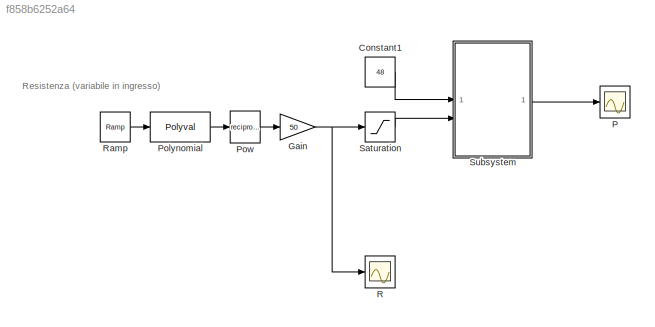
MODEL slx_f858b6252a64
KIND model
CONFIG AbsTol = auto
CONFIG EnableMultiTasking = off
CONFIG FixedStep = auto
CONFIG MaxStep = auto
CONFIG MinStep = auto
CONFIG RelTol = 1e-3
CONFIG SampleTimeConstraint = Unconstrained
CONFIG SolverName = VariableStepAuto
CONFIG StartTime = 0.0
CONFIG StopTime = 1800
BLOCK [Constant] Constant1
  Value = 48
BLOCK [Gain] Gain
  Gain = 50
BLOCK [Scope] P
  Floating = off
  NumInputPorts = 1
  ScopeSpecificationString = Simulink.scopes.TimeScopeBlockCfg('CurrentConfiguration', extmgr.ConfigurationSet(extmgr.Configuration('Core','General UI',true),extmgr.Configuration('Core','Source UI',true),extmgr.Configuration('Sources','WiredSimulink',true),extmgr.Configuration('Visuals','Time Domain',true,'SerializedDisplays',{struct('MinYLimReal','-180.73043','MaxYLimReal','1726.74783','YLabelReal','','MinYLimMag',' 0.00000'...<+1825ch>
BLOCK [Polyval] Polynomial
  Coefs = [10e-4 0 0]
BLOCK [Math] Pow
  Operator = reciprocal
  RndMeth = Zero
  SignedPower = on
BLOCK [Scope] R
  Floating = off
  NumInputPorts = 1
  ScopeSpecificationString = Simulink.scopes.TimeScopeBlockCfg('CurrentConfiguration', extmgr.ConfigurationSet(extmgr.Configuration('Core','General UI',true),extmgr.Configuration('Core','Source UI',true),extmgr.Configuration('Sources','WiredSimulink',true,'DataLoggingVariableName','ScopeData1'),extmgr.Configuration('Visuals','Time Domain',true,'SerializedDisplays',{struct('MinYLimReal','-33581272767073026125527649353728.00000...<+2091ch>
BLOCK [Reference] Ramp  REF=simulink/Sources/Ramp
  SourceBlock = simulink/Sources/Ramp
  SourceType = Ramp
BLOCK [Saturate] Saturation
  LowerLimit = 1.5
  UpperLimit = 230
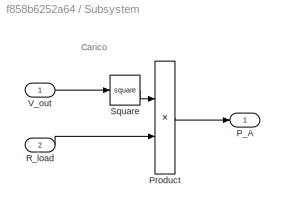
BLOCK [SubSystem] Subsystem
BLOCK [Outport] Subsystem/P_A
  NameLocation = right
  Unit = W
BLOCK [Product] Subsystem/Product
  Inputs = */
BLOCK [Inport] Subsystem/R_load
  NameLocation = left
  Port = 2
  Unit = Ω
BLOCK [Math] Subsystem/Square
  Operator = square
BLOCK [Inport] Subsystem/V_out
  NameLocation = left
  Unit = V
ANNOTATION (root): Resistenza (variabile in ingresso)
ANNOTATION Subsystem: Carico
LINE Constant1:1 -> Subsystem:1
NET Gain:1 -> R:1, Saturation:1
LINE Polynomial:1 -> Pow:1
LINE Pow:1 -> Gain:1
LINE Ramp:1 -> Polynomial:1
LINE Saturation:1 -> Subsystem:2
LINE Subsystem/Product:1 -> Subsystem/P_A:1
LINE Subsystem/R_load:1 -> Subsystem/Product:2
LINE Subsystem/Square:1 -> Subsystem/Product:1
LINE Subsystem/V_out:1 -> Subsystem/Square:1
LINE Subsystem:1 -> P:1
note: NET lines group one-source signal fan-out (src -> all destinations, sorted); 1:1 wires keep LINE
